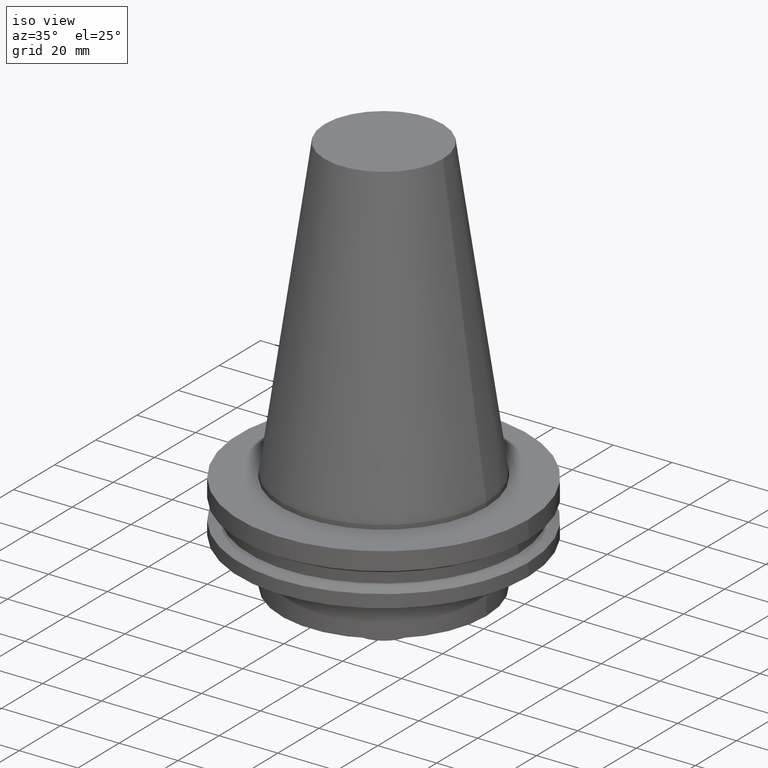
[diagram: clean part render]
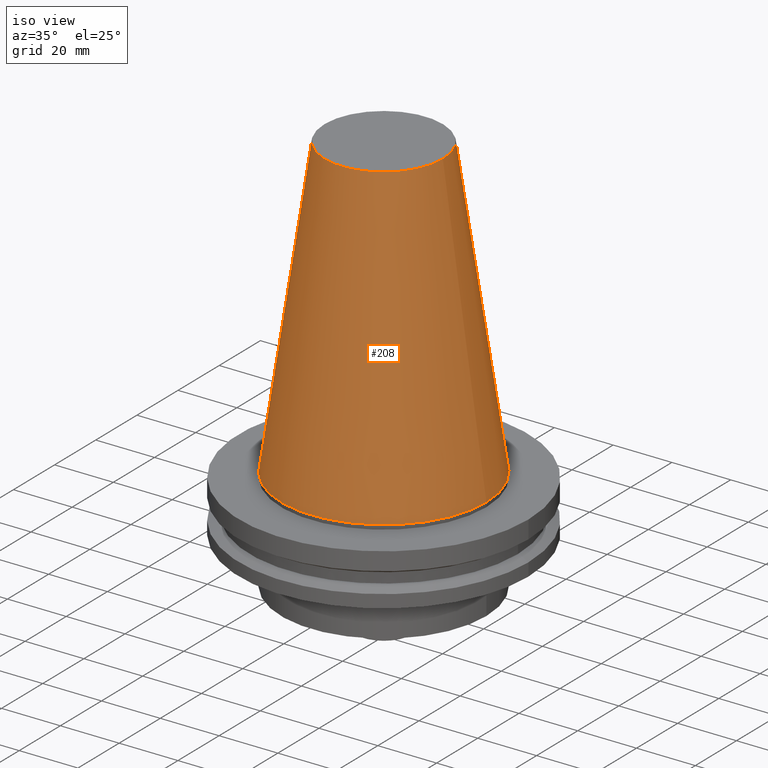
[diagram: tour spotlight — one face highlighted and labeled with its STEP entity id]
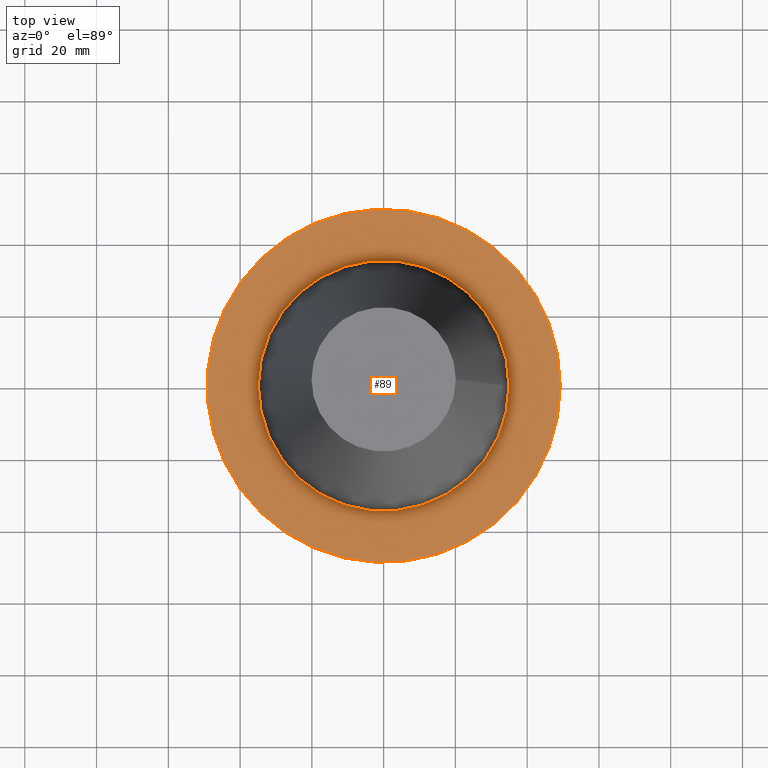
[diagram: tour spotlight — one face highlighted and labeled with its STEP entity id]
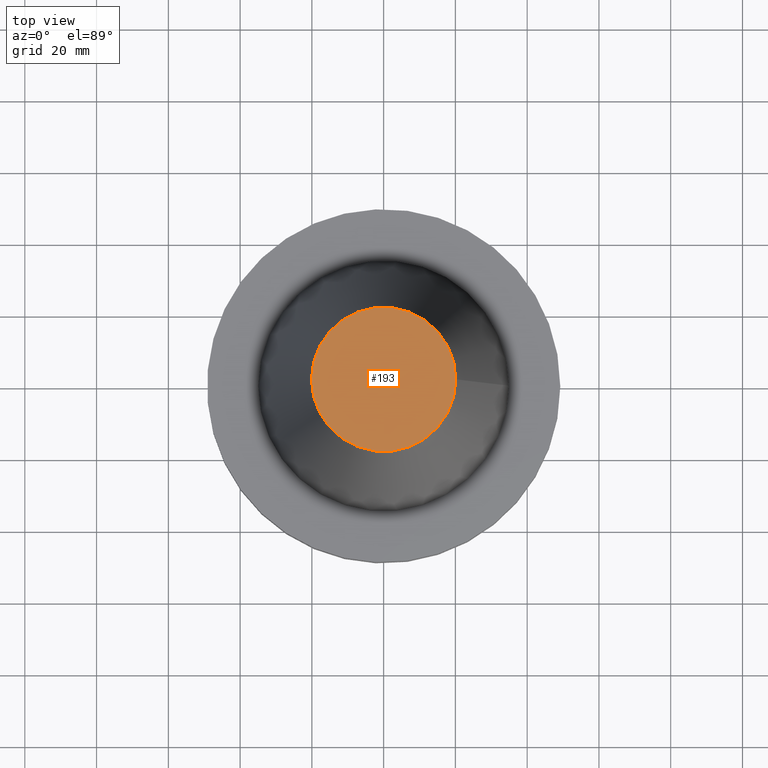
[diagram: tour spotlight — one face highlighted and labeled with its STEP entity id]
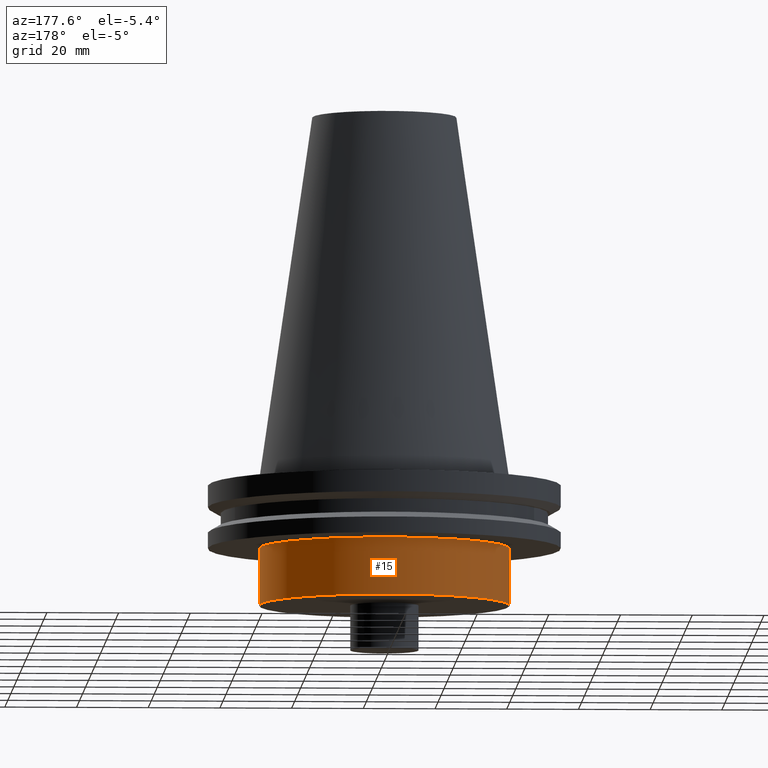
[diagram: tour spotlight — one face highlighted and labeled with its STEP entity id]
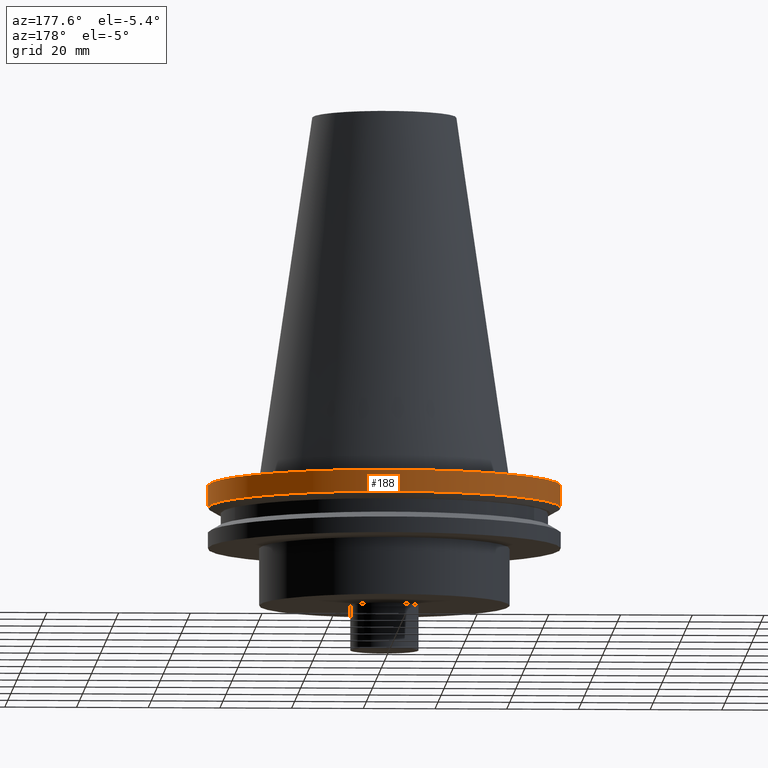
[diagram: tour spotlight — one face highlighted and labeled with its STEP entity id]
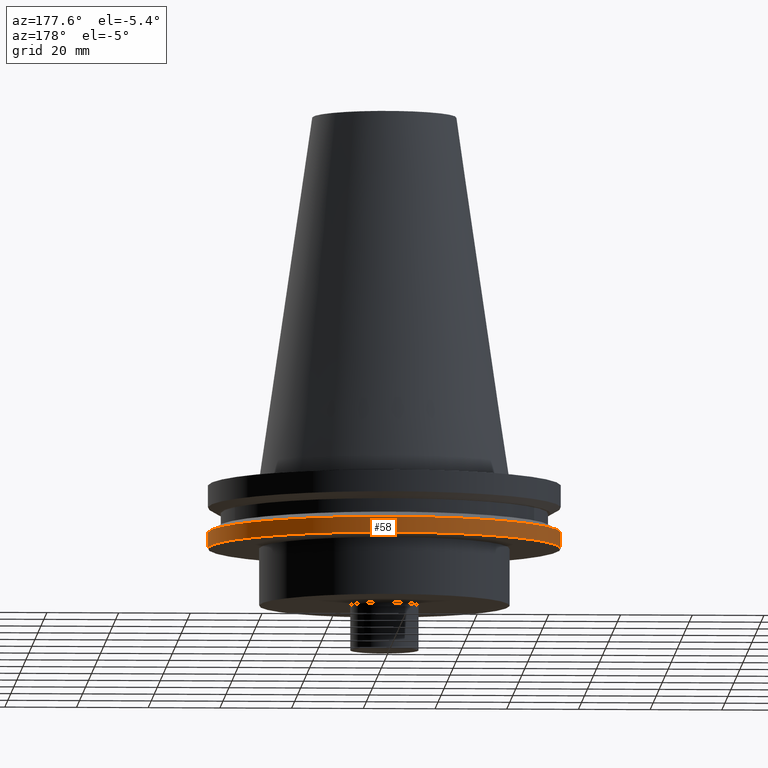
[diagram: tour spotlight — one face highlighted and labeled with its STEP entity id]
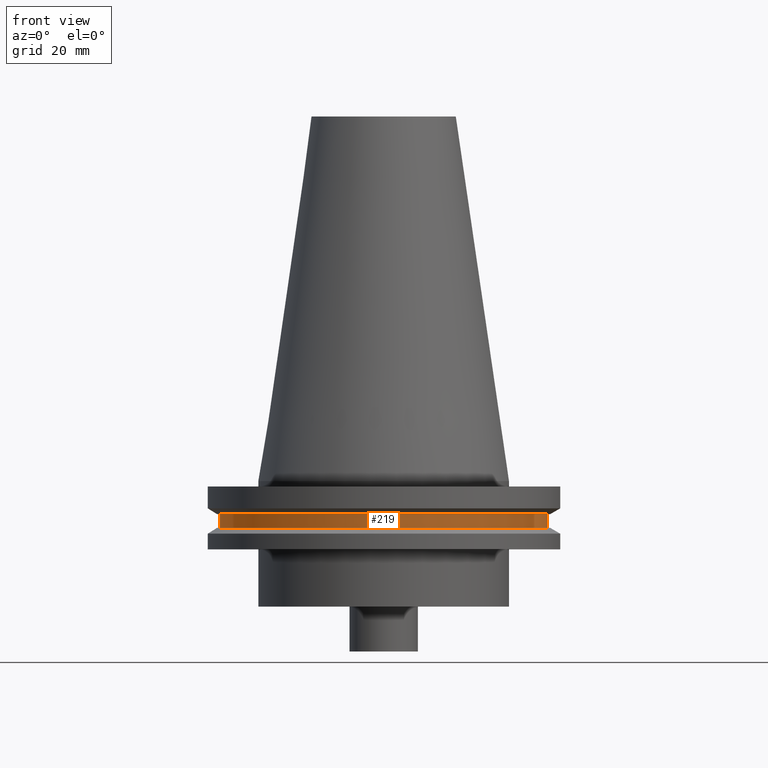
[diagram: tour spotlight — one face highlighted and labeled with its STEP entity id]
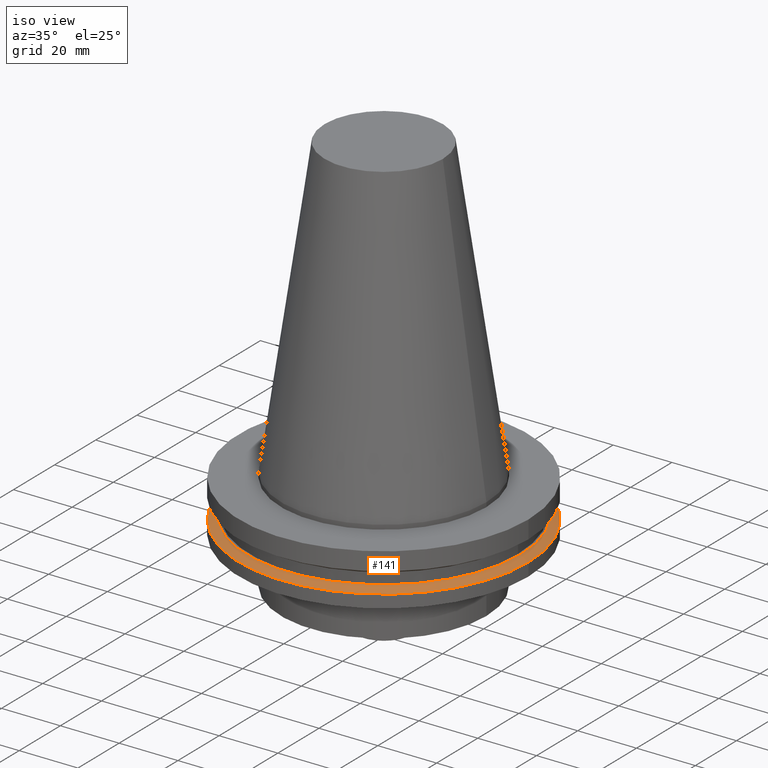
[diagram: tour spotlight — one face highlighted and labeled with its STEP entity id]
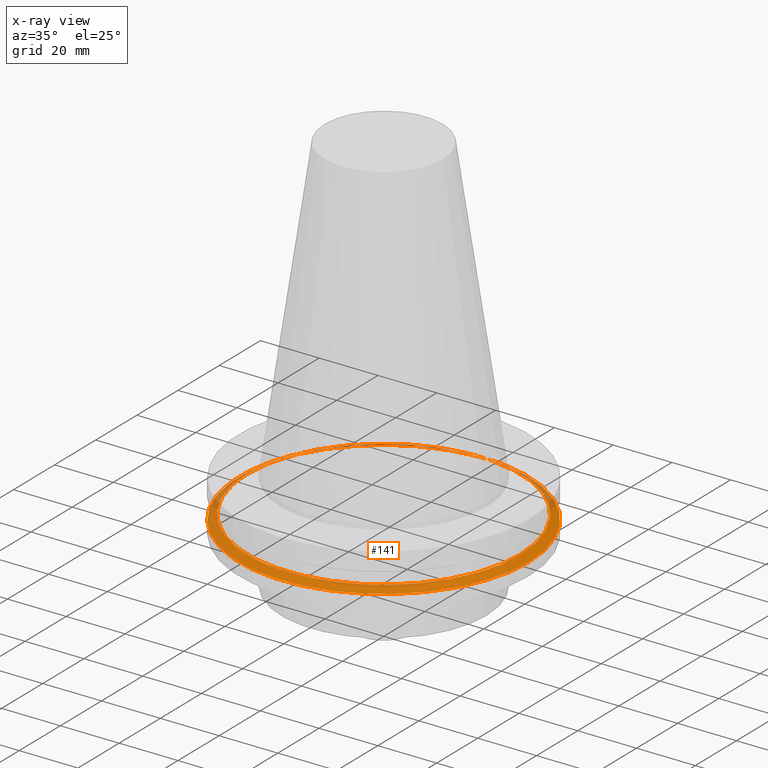
[diagram: x-ray of the same camera — body ghosted, this tour face saturated]
A machine part: a face-by-face anatomy tour. The part has 16 B-rep faces; the first image is the clean iso view, then the 8 largest visible faces are spotlighted one at a time (largest first), each with its STEP entity span.

Face 1 — iso view, entity #208. In plain terms, the highlighted conical surface has half-angle 8.297 deg.
Definition (entity closure, byte-faithful):
#1 = CARTESIAN_POINT ( 'NONE',  ( 0.000000000000000000, 0.000000000000000000, 0.000000000000000000 ) ) ;
#4 = DIRECTION ( 'NONE',  ( -0.000000000000000000, -0.000000000000000000, 1.000000000000000000 ) ) ;
#31 = VERTEX_POINT ( 'NONE', #36 ) ;
#36 = CARTESIAN_POINT ( 'NONE',  ( 34.92499999999999005, 0.000000000000000000, 0.000000000000000000 ) ) ;
#38 = DIRECTION ( 'NONE',  ( 1.000000000000000000, 0.000000000000000000, 0.000000000000000000 ) ) ;
#81 = AXIS2_PLACEMENT_3D ( 'NONE', #1, #4, #191 ) ;
#84 = EDGE_CURVE ( 'NONE', #90, #90, #333, .T. ) ;
#90 = VERTEX_POINT ( 'NONE', #272 ) ;
#139 = EDGE_LOOP ( 'NONE', ( #142 ) ) ;
#142 = ORIENTED_EDGE ( 'NONE', *, *, #84, .F. ) ;
#151 = CARTESIAN_POINT ( 'NONE',  ( 0.000000000000000000, 0.000000000000000000, 0.000000000000000000 ) ) ;
#168 = AXIS2_PLACEMENT_3D ( 'NONE', #151, #318, #178 ) ;
#178 = DIRECTION ( 'NONE',  ( -1.000000000000000000, 0.000000000000000000, 0.000000000000000000 ) ) ;
#189 = ORIENTED_EDGE ( 'NONE', *, *, #310, .T. ) ;
#191 = DIRECTION ( 'NONE',  ( 1.000000000000000000, 0.000000000000000000, 0.000000000000000000 ) ) ;
#208 = ADVANCED_FACE ( 'NONE', ( #350, #298 ), #326, .T. ) ;
#216 = AXIS2_PLACEMENT_3D ( 'NONE', #257, #285, #38 ) ;
#245 = CIRCLE ( 'NONE', #81, 34.92499999999999005 ) ;
#257 = CARTESIAN_POINT ( 'NONE',  ( 0.000000000000000000, 0.000000000000000000, 101.5999999999999801 ) ) ;
#272 = CARTESIAN_POINT ( 'NONE',  ( 20.10819343178871321, 0.000000000000000000, 101.5999999999999801 ) ) ;
#285 = DIRECTION ( 'NONE',  ( -0.000000000000000000, -0.000000000000000000, 1.000000000000000000 ) ) ;
#298 = FACE_OUTER_BOUND ( 'NONE', #345, .T. ) ;
#310 = EDGE_CURVE ( 'NONE', #31, #31, #245, .T. ) ;
#318 = DIRECTION ( 'NONE',  ( 0.000000000000000000, 0.000000000000000000, -1.000000000000000000 ) ) ;
#326 = CONICAL_SURFACE ( 'NONE', #168, 34.92499999999999005, 0.1448138465474119452 ) ;
#333 = CIRCLE ( 'NONE', #216, 20.10819343178871321 ) ;
#345 = EDGE_LOOP ( 'NONE', ( #189 ) ) ;
#350 = FACE_BOUND ( 'NONE', #139, .T. ) ;

Face 2 — top view, entity #89. In plain terms, the highlighted planar face has unit normal (0, 0, -1).
Definition (entity closure, byte-faithful):
#7 = CIRCLE ( 'NONE', #98, 49.21499999999999631 ) ;
#8 = ORIENTED_EDGE ( 'NONE', *, *, #253, .T. ) ;
#9 = DIRECTION ( 'NONE',  ( -0.000000000000000000, -0.000000000000000000, 1.000000000000000000 ) ) ;
#12 = AXIS2_PLACEMENT_3D ( 'NONE', #382, #107, #335 ) ;
#19 = CARTESIAN_POINT ( 'NONE',  ( 0.000000000000000000, 0.000000000000000000, -1.499999999999987566 ) ) ;
#33 = AXIS2_PLACEMENT_3D ( 'NONE', #355, #9, #218 ) ;
#54 = DIRECTION ( 'NONE',  ( 1.000000000000000000, 0.000000000000000000, 0.000000000000000000 ) ) ;
#60 = CARTESIAN_POINT ( 'NONE',  ( 34.92499999999999005, 0.000000000000000000, -1.499999999999987566 ) ) ;
#89 = ADVANCED_FACE ( 'NONE', ( #377, #311 ), #167, .F. ) ;
#98 = AXIS2_PLACEMENT_3D ( 'NONE', #19, #210, #54 ) ;
#107 = DIRECTION ( 'NONE',  ( 0.000000000000000000, 0.000000000000000000, -1.000000000000000000 ) ) ;
#167 = PLANE ( 'NONE',  #12 ) ;
#186 = EDGE_LOOP ( 'NONE', ( #308 ) ) ;
#210 = DIRECTION ( 'NONE',  ( -0.000000000000000000, -0.000000000000000000, 1.000000000000000000 ) ) ;
#218 = DIRECTION ( 'NONE',  ( 1.000000000000000000, 0.000000000000000000, 0.000000000000000000 ) ) ;
#247 = VERTEX_POINT ( 'NONE', #60 ) ;
#253 = EDGE_CURVE ( 'NONE', #370, #370, #7, .T. ) ;
#282 = EDGE_CURVE ( 'NONE', #247, #247, #342, .T. ) ;
#300 = CARTESIAN_POINT ( 'NONE',  ( 49.21499999999999631, 0.000000000000000000, -1.499999999999987566 ) ) ;
#308 = ORIENTED_EDGE ( 'NONE', *, *, #282, .F. ) ;
#311 = FACE_OUTER_BOUND ( 'NONE', #314, .T. ) ;
#314 = EDGE_LOOP ( 'NONE', ( #8 ) ) ;
#335 = DIRECTION ( 'NONE',  ( -1.000000000000000000, 0.000000000000000000, -0.000000000000000000 ) ) ;
#342 = CIRCLE ( 'NONE', #33, 34.92499999999999005 ) ;
#355 = CARTESIAN_POINT ( 'NONE',  ( 0.000000000000000000, 0.000000000000000000, -1.499999999999987566 ) ) ;
#370 = VERTEX_POINT ( 'NONE', #300 ) ;
#377 = FACE_BOUND ( 'NONE', #186, .T. ) ;
#382 = CARTESIAN_POINT ( 'NONE',  ( 0.000000000000000000, 49.21499999999999631, -1.499999999999992895 ) ) ;

Face 3 — top view, entity #193. In plain terms, the highlighted planar face has unit normal (0, 0, -1).
Definition (entity closure, byte-faithful):
#28 = DIRECTION ( 'NONE',  ( -1.000000000000000000, 0.000000000000000000, -0.000000000000000000 ) ) ;
#38 = DIRECTION ( 'NONE',  ( 1.000000000000000000, 0.000000000000000000, 0.000000000000000000 ) ) ;
#80 = PLANE ( 'NONE',  #228 ) ;
#84 = EDGE_CURVE ( 'NONE', #90, #90, #333, .T. ) ;
#90 = VERTEX_POINT ( 'NONE', #272 ) ;
#115 = FACE_OUTER_BOUND ( 'NONE', #371, .T. ) ;
#180 = CARTESIAN_POINT ( 'NONE',  ( 0.000000000000000000, 20.10819343178871321, 101.5999999999999943 ) ) ;
#193 = ADVANCED_FACE ( 'NONE', ( #115 ), #80, .F. ) ;
#207 = DIRECTION ( 'NONE',  ( 0.000000000000000000, 0.000000000000000000, -1.000000000000000000 ) ) ;
#216 = AXIS2_PLACEMENT_3D ( 'NONE', #257, #285, #38 ) ;
#228 = AXIS2_PLACEMENT_3D ( 'NONE', #180, #207, #28 ) ;
#257 = CARTESIAN_POINT ( 'NONE',  ( 0.000000000000000000, 0.000000000000000000, 101.5999999999999801 ) ) ;
#272 = CARTESIAN_POINT ( 'NONE',  ( 20.10819343178871321, 0.000000000000000000, 101.5999999999999801 ) ) ;
#285 = DIRECTION ( 'NONE',  ( -0.000000000000000000, -0.000000000000000000, 1.000000000000000000 ) ) ;
#333 = CIRCLE ( 'NONE', #216, 20.10819343178871321 ) ;
#344 = ORIENTED_EDGE ( 'NONE', *, *, #84, .T. ) ;
#371 = EDGE_LOOP ( 'NONE', ( #344 ) ) ;

Face 4 — auxiliary view, entity #15. In plain terms, the highlighted cylindrical surface (bore or boss wall) has radius 34.925 mm, axis along (-0, -0, 1).
Definition (entity closure, byte-faithful):
#6 = DIRECTION ( 'NONE',  ( 1.000000000000000000, 0.000000000000000000, 0.000000000000000000 ) ) ;
#15 = ADVANCED_FACE ( 'NONE', ( #105, #100 ), #130, .T. ) ;
#43 = DIRECTION ( 'NONE',  ( -0.000000000000000000, -0.000000000000000000, 1.000000000000000000 ) ) ;
#66 = DIRECTION ( 'NONE',  ( 1.000000000000000000, 0.000000000000000000, 0.000000000000000000 ) ) ;
#68 = DIRECTION ( 'NONE',  ( -0.000000000000000000, -0.000000000000000000, 1.000000000000000000 ) ) ;
#77 = ORIENTED_EDGE ( 'NONE', *, *, #367, .T. ) ;
#97 = CARTESIAN_POINT ( 'NONE',  ( 34.92499999999999716, 0.000000000000000000, -19.04999999999999716 ) ) ;
#100 = FACE_OUTER_BOUND ( 'NONE', #244, .T. ) ;
#105 = FACE_OUTER_BOUND ( 'NONE', #159, .T. ) ;
#124 = EDGE_CURVE ( 'NONE', #395, #395, #363, .T. ) ;
#129 = DIRECTION ( 'NONE',  ( -0.000000000000000000, -0.000000000000000000, 1.000000000000000000 ) ) ;
#130 = CYLINDRICAL_SURFACE ( 'NONE', #349, 34.92499999999999716 ) ;
#159 = EDGE_LOOP ( 'NONE', ( #328 ) ) ;
#183 = CIRCLE ( 'NONE', #231, 34.92499999999999716 ) ;
#195 = AXIS2_PLACEMENT_3D ( 'NONE', #243, #68, #6 ) ;
#231 = AXIS2_PLACEMENT_3D ( 'NONE', #302, #129, #327 ) ;
#243 = CARTESIAN_POINT ( 'NONE',  ( 0.000000000000000000, 0.000000000000000000, -19.04999999999999716 ) ) ;
#244 = EDGE_LOOP ( 'NONE', ( #77 ) ) ;
#270 = CARTESIAN_POINT ( 'NONE',  ( 34.92499999999999716, 0.000000000000000000, -35.00000000000000000 ) ) ;
#302 = CARTESIAN_POINT ( 'NONE',  ( 0.000000000000000000, 0.000000000000000000, -35.00000000000000000 ) ) ;
#327 = DIRECTION ( 'NONE',  ( 1.000000000000000000, 0.000000000000000000, 0.000000000000000000 ) ) ;
#328 = ORIENTED_EDGE ( 'NONE', *, *, #124, .F. ) ;
#338 = CARTESIAN_POINT ( 'NONE',  ( 0.000000000000000000, 0.000000000000000000, 101.5999999999999943 ) ) ;
#349 = AXIS2_PLACEMENT_3D ( 'NONE', #338, #43, #66 ) ;
#363 = CIRCLE ( 'NONE', #195, 34.92499999999999716 ) ;
#364 = VERTEX_POINT ( 'NONE', #270 ) ;
#367 = EDGE_CURVE ( 'NONE', #364, #364, #183, .T. ) ;
#395 = VERTEX_POINT ( 'NONE', #97 ) ;

Face 5 — auxiliary view, entity #188. In plain terms, the highlighted cylindrical surface (bore or boss wall) has radius 49.215 mm, axis along (-0, -0, 1).
Definition (entity closure, byte-faithful):
#7 = CIRCLE ( 'NONE', #98, 49.21499999999999631 ) ;
#19 = CARTESIAN_POINT ( 'NONE',  ( 0.000000000000000000, 0.000000000000000000, -1.499999999999987566 ) ) ;
#29 = DIRECTION ( 'NONE',  ( -0.000000000000000000, -0.000000000000000000, 1.000000000000000000 ) ) ;
#37 = AXIS2_PLACEMENT_3D ( 'NONE', #359, #56, #387 ) ;
#54 = DIRECTION ( 'NONE',  ( 1.000000000000000000, 0.000000000000000000, 0.000000000000000000 ) ) ;
#56 = DIRECTION ( 'NONE',  ( -0.000000000000000000, -0.000000000000000000, 1.000000000000000000 ) ) ;
#87 = AXIS2_PLACEMENT_3D ( 'NONE', #209, #29, #152 ) ;
#98 = AXIS2_PLACEMENT_3D ( 'NONE', #19, #210, #54 ) ;
#114 = ORIENTED_EDGE ( 'NONE', *, *, #253, .F. ) ;
#122 = VERTEX_POINT ( 'NONE', #181 ) ;
#123 = EDGE_LOOP ( 'NONE', ( #114 ) ) ;
#152 = DIRECTION ( 'NONE',  ( 1.000000000000000000, 0.000000000000000000, 0.000000000000000000 ) ) ;
#161 = CIRCLE ( 'NONE', #87, 49.21500000000000341 ) ;
#181 = CARTESIAN_POINT ( 'NONE',  ( 49.21500000000000341, 0.000000000000000000, -7.602389855251287187 ) ) ;
#188 = ADVANCED_FACE ( 'NONE', ( #324, #288 ), #296, .T. ) ;
#190 = ORIENTED_EDGE ( 'NONE', *, *, #212, .T. ) ;
#209 = CARTESIAN_POINT ( 'NONE',  ( 0.000000000000000000, 0.000000000000000000, -7.602389855251287187 ) ) ;
#210 = DIRECTION ( 'NONE',  ( -0.000000000000000000, -0.000000000000000000, 1.000000000000000000 ) ) ;
#212 = EDGE_CURVE ( 'NONE', #122, #122, #161, .T. ) ;
#233 = EDGE_LOOP ( 'NONE', ( #190 ) ) ;
#253 = EDGE_CURVE ( 'NONE', #370, #370, #7, .T. ) ;
#288 = FACE_OUTER_BOUND ( 'NONE', #233, .T. ) ;
#296 = CYLINDRICAL_SURFACE ( 'NONE', #37, 49.21499999999999631 ) ;
#300 = CARTESIAN_POINT ( 'NONE',  ( 49.21499999999999631, 0.000000000000000000, -1.499999999999987566 ) ) ;
#324 = FACE_OUTER_BOUND ( 'NONE', #123, .T. ) ;
#359 = CARTESIAN_POINT ( 'NONE',  ( 0.000000000000000000, 0.000000000000000000, 101.5999999999999943 ) ) ;
#370 = VERTEX_POINT ( 'NONE', #300 ) ;
#387 = DIRECTION ( 'NONE',  ( 1.000000000000000000, 0.000000000000000000, 0.000000000000000000 ) ) ;

Face 6 — auxiliary view, entity #58. In plain terms, the highlighted cylindrical surface (bore or boss wall) has radius 49.215 mm, axis along (-0, -0, 1).
Definition (entity closure, byte-faithful):
#13 = CYLINDRICAL_SURFACE ( 'NONE', #144, 49.21499999999998920 ) ;
#24 = EDGE_LOOP ( 'NONE', ( #184 ) ) ;
#35 = DIRECTION ( 'NONE',  ( 1.000000000000000000, 0.000000000000000000, 0.000000000000000000 ) ) ;
#49 = ORIENTED_EDGE ( 'NONE', *, *, #112, .F. ) ;
#58 = ADVANCED_FACE ( 'NONE', ( #374, #220 ), #13, .T. ) ;
#64 = AXIS2_PLACEMENT_3D ( 'NONE', #226, #304, #35 ) ;
#99 = DIRECTION ( 'NONE',  ( 1.000000000000000000, 0.000000000000000000, 0.000000000000000000 ) ) ;
#112 = EDGE_CURVE ( 'NONE', #394, #394, #376, .T. ) ;
#128 = DIRECTION ( 'NONE',  ( -0.000000000000000000, -0.000000000000000000, 1.000000000000000000 ) ) ;
#137 = CARTESIAN_POINT ( 'NONE',  ( 0.000000000000000000, 0.000000000000000000, 101.5999999999999943 ) ) ;
#144 = AXIS2_PLACEMENT_3D ( 'NONE', #137, #128, #99 ) ;
#156 = AXIS2_PLACEMENT_3D ( 'NONE', #268, #263, #237 ) ;
#171 = EDGE_CURVE ( 'NONE', #211, #211, #284, .T. ) ;
#184 = ORIENTED_EDGE ( 'NONE', *, *, #171, .T. ) ;
#211 = VERTEX_POINT ( 'NONE', #325 ) ;
#214 = CARTESIAN_POINT ( 'NONE',  ( 49.21499999999998920, 0.000000000000000000, -14.65761014474876944 ) ) ;
#220 = FACE_OUTER_BOUND ( 'NONE', #24, .T. ) ;
#226 = CARTESIAN_POINT ( 'NONE',  ( 0.000000000000000000, 0.000000000000000000, -14.65761014474876944 ) ) ;
#237 = DIRECTION ( 'NONE',  ( 1.000000000000000000, 0.000000000000000000, 0.000000000000000000 ) ) ;
#263 = DIRECTION ( 'NONE',  ( -0.000000000000000000, -0.000000000000000000, 1.000000000000000000 ) ) ;
#268 = CARTESIAN_POINT ( 'NONE',  ( 0.000000000000000000, 0.000000000000000000, -19.04999999999999716 ) ) ;
#284 = CIRCLE ( 'NONE', #156, 49.21499999999998920 ) ;
#304 = DIRECTION ( 'NONE',  ( -0.000000000000000000, -0.000000000000000000, 1.000000000000000000 ) ) ;
#325 = CARTESIAN_POINT ( 'NONE',  ( 49.21499999999998920, 0.000000000000000000, -19.04999999999999716 ) ) ;
#362 = EDGE_LOOP ( 'NONE', ( #49 ) ) ;
#374 = FACE_OUTER_BOUND ( 'NONE', #362, .T. ) ;
#376 = CIRCLE ( 'NONE', #64, 49.21499999999998920 ) ;
#394 = VERTEX_POINT ( 'NONE', #214 ) ;

Face 7 — front view, entity #219. In plain terms, the highlighted cylindrical surface (bore or boss wall) has radius 45.645 mm, axis along (-0, -0, 1).
Definition (entity closure, byte-faithful):
#61 = ORIENTED_EDGE ( 'NONE', *, *, #133, .T. ) ;
#75 = CIRCLE ( 'NONE', #368, 45.64500000000000313 ) ;
#82 = EDGE_LOOP ( 'NONE', ( #372 ) ) ;
#88 = CYLINDRICAL_SURFACE ( 'NONE', #391, 45.64500000000000313 ) ;
#104 = CIRCLE ( 'NONE', #157, 45.64500000000000313 ) ;
#132 = CARTESIAN_POINT ( 'NONE',  ( 0.000000000000000000, 0.000000000000000000, -9.204999999999991189 ) ) ;
#133 = EDGE_CURVE ( 'NONE', #238, #238, #75, .T. ) ;
#154 = VERTEX_POINT ( 'NONE', #162 ) ;
#157 = AXIS2_PLACEMENT_3D ( 'NONE', #132, #164, #196 ) ;
#162 = CARTESIAN_POINT ( 'NONE',  ( 45.64500000000000313, 0.000000000000000000, -9.204999999999991189 ) ) ;
#164 = DIRECTION ( 'NONE',  ( -0.000000000000000000, -0.000000000000000000, 1.000000000000000000 ) ) ;
#165 = DIRECTION ( 'NONE',  ( 1.000000000000000000, 0.000000000000000000, 0.000000000000000000 ) ) ;
#196 = DIRECTION ( 'NONE',  ( 1.000000000000000000, 0.000000000000000000, 0.000000000000000000 ) ) ;
#197 = DIRECTION ( 'NONE',  ( -0.000000000000000000, -0.000000000000000000, 1.000000000000000000 ) ) ;
#203 = FACE_OUTER_BOUND ( 'NONE', #82, .T. ) ;
#219 = ADVANCED_FACE ( 'NONE', ( #203, #357 ), #88, .T. ) ;
#238 = VERTEX_POINT ( 'NONE', #329 ) ;
#251 = CARTESIAN_POINT ( 'NONE',  ( 0.000000000000000000, 0.000000000000000000, -13.05499999999999794 ) ) ;
#291 = DIRECTION ( 'NONE',  ( 1.000000000000000000, 0.000000000000000000, 0.000000000000000000 ) ) ;
#315 = CARTESIAN_POINT ( 'NONE',  ( 0.000000000000000000, 0.000000000000000000, 101.5999999999999943 ) ) ;
#329 = CARTESIAN_POINT ( 'NONE',  ( 45.64500000000000313, 0.000000000000000000, -13.05499999999999794 ) ) ;
#337 = EDGE_CURVE ( 'NONE', #154, #154, #104, .T. ) ;
#351 = EDGE_LOOP ( 'NONE', ( #61 ) ) ;
#357 = FACE_OUTER_BOUND ( 'NONE', #351, .T. ) ;
#368 = AXIS2_PLACEMENT_3D ( 'NONE', #251, #197, #165 ) ;
#372 = ORIENTED_EDGE ( 'NONE', *, *, #337, .F. ) ;
#391 = AXIS2_PLACEMENT_3D ( 'NONE', #315, #392, #291 ) ;
#392 = DIRECTION ( 'NONE',  ( -0.000000000000000000, -0.000000000000000000, 1.000000000000000000 ) ) ;

Face 8 — iso view, entity #141. An x-ray twin of the same camera follows (body ghosted, this face saturated) — the face is partly hidden behind the body. In plain terms, the highlighted conical surface has half-angle 60 deg.
Definition (entity closure, byte-faithful):
#22 = DIRECTION ( 'NONE',  ( -1.000000000000000000, 0.000000000000000000, 0.000000000000000000 ) ) ;
#35 = DIRECTION ( 'NONE',  ( 1.000000000000000000, 0.000000000000000000, 0.000000000000000000 ) ) ;
#41 = EDGE_LOOP ( 'NONE', ( #92 ) ) ;
#51 = DIRECTION ( 'NONE',  ( 0.000000000000000000, 0.000000000000000000, -1.000000000000000000 ) ) ;
#59 = VERTEX_POINT ( 'NONE', #305 ) ;
#64 = AXIS2_PLACEMENT_3D ( 'NONE', #226, #304, #35 ) ;
#70 = CARTESIAN_POINT ( 'NONE',  ( 0.000000000000000000, 0.000000000000000000, -14.65761014474876944 ) ) ;
#91 = ORIENTED_EDGE ( 'NONE', *, *, #112, .T. ) ;
#92 = ORIENTED_EDGE ( 'NONE', *, *, #182, .F. ) ;
#112 = EDGE_CURVE ( 'NONE', #394, #394, #376, .T. ) ;
#117 = CIRCLE ( 'NONE', #307, 46.43919780457007818 ) ;
#141 = ADVANCED_FACE ( 'NONE', ( #280, #341 ), #274, .T. ) ;
#148 = DIRECTION ( 'NONE',  ( -0.000000000000000000, -0.000000000000000000, 1.000000000000000000 ) ) ;
#175 = DIRECTION ( 'NONE',  ( 1.000000000000000000, 0.000000000000000000, 0.000000000000000000 ) ) ;
#182 = EDGE_CURVE ( 'NONE', #59, #59, #117, .T. ) ;
#214 = CARTESIAN_POINT ( 'NONE',  ( 49.21499999999998920, 0.000000000000000000, -14.65761014474876944 ) ) ;
#226 = CARTESIAN_POINT ( 'NONE',  ( 0.000000000000000000, 0.000000000000000000, -14.65761014474876944 ) ) ;
#229 = CARTESIAN_POINT ( 'NONE',  ( 0.000000000000000000, 0.000000000000000000, -13.05499999999999794 ) ) ;
#254 = EDGE_LOOP ( 'NONE', ( #91 ) ) ;
#274 = CONICAL_SURFACE ( 'NONE', #321, 49.21499999999998920, 1.047197551196554333 ) ;
#280 = FACE_BOUND ( 'NONE', #41, .T. ) ;
#304 = DIRECTION ( 'NONE',  ( -0.000000000000000000, -0.000000000000000000, 1.000000000000000000 ) ) ;
#305 = CARTESIAN_POINT ( 'NONE',  ( 46.43919780457007818, 0.000000000000000000, -13.05499999999999794 ) ) ;
#307 = AXIS2_PLACEMENT_3D ( 'NONE', #229, #148, #175 ) ;
#321 = AXIS2_PLACEMENT_3D ( 'NONE', #70, #51, #22 ) ;
#341 = FACE_OUTER_BOUND ( 'NONE', #254, .T. ) ;
#376 = CIRCLE ( 'NONE', #64, 49.21499999999998920 ) ;
#394 = VERTEX_POINT ( 'NONE', #214 ) ;